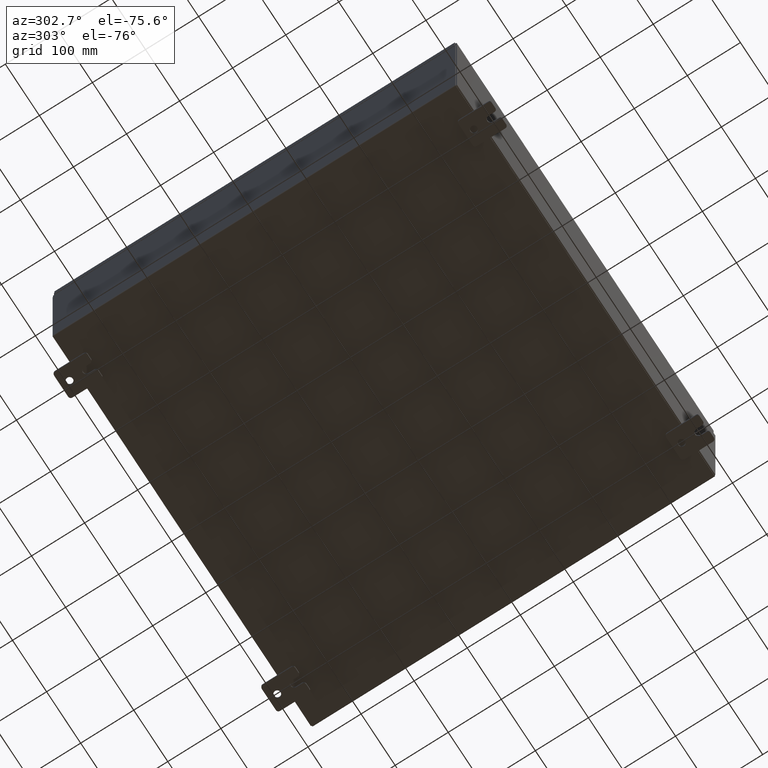
[diagram: clean part render]
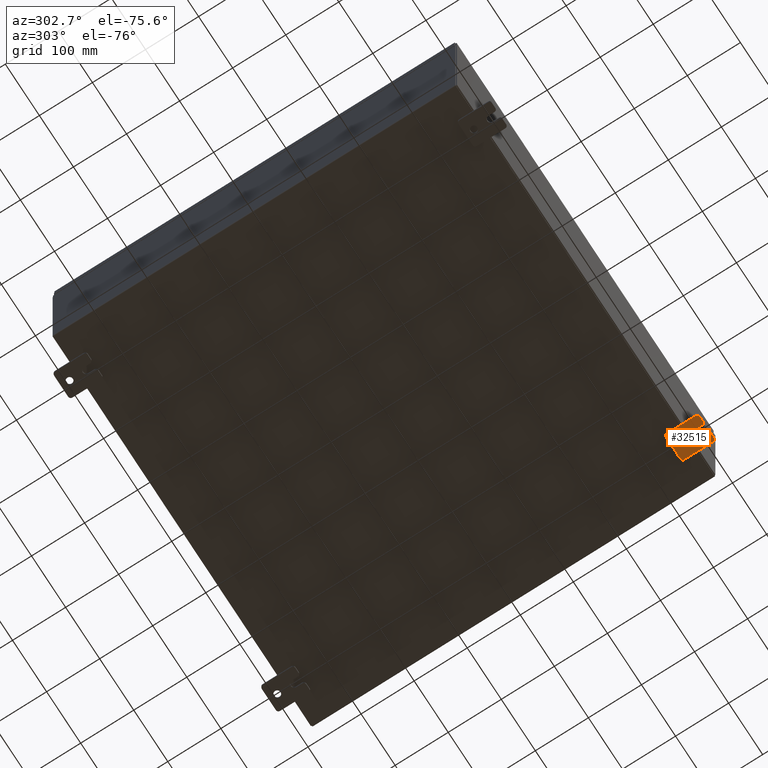
[diagram: same view with one face highlighted and labeled with its STEP entity id]
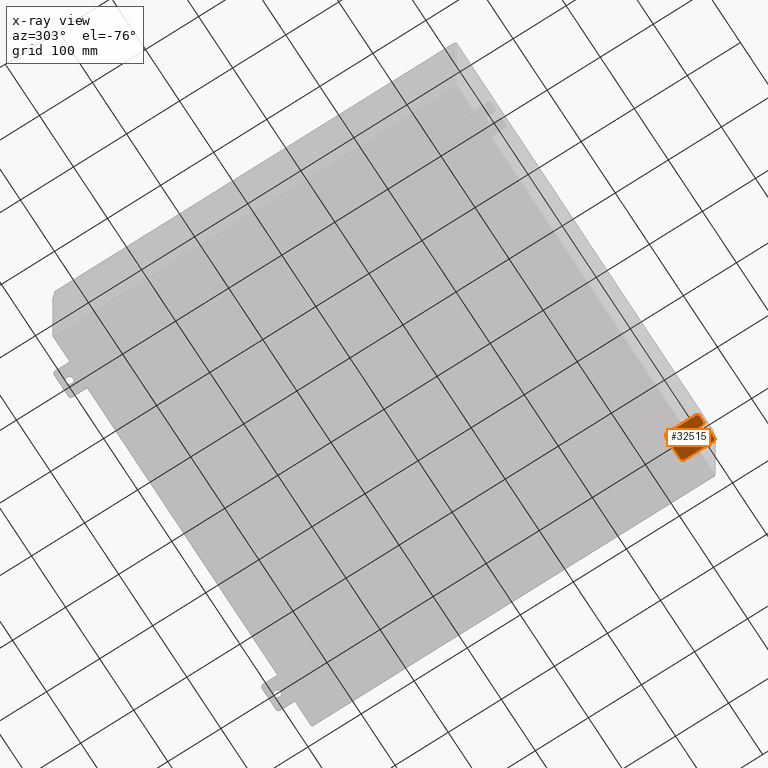
[diagram: x-ray of the same camera — body ghosted, the highlighted face saturated]
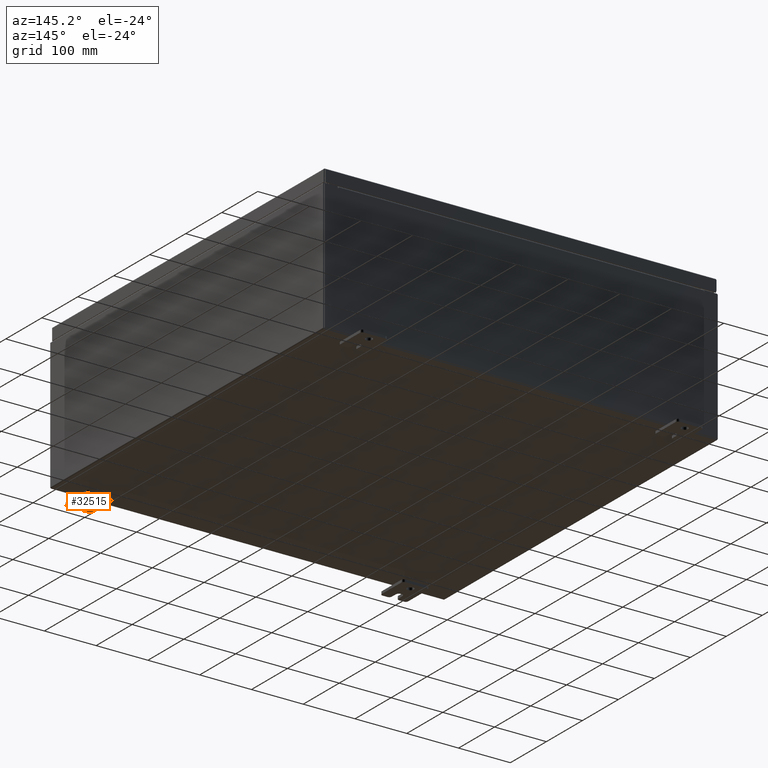
[diagram: same view with one face highlighted and labeled with its STEP entity id]
A machine part, auxiliary view. The second image highlights one B-rep face of the part: STEP entity #32515.
The next image is the same camera in x-ray: the body ghosted, the highlighted face saturated — about 0% of this face is hidden behind the body in this view.
A second angle (auxiliary view) of the same face is appended — the face is thin or edge-on in the first view.
In plain terms, the highlighted planar face has unit normal (0, 0, 1).
Its self-contained STEP definition (entity closure, byte-faithful):
#132 = EDGE_CURVE ( 'NONE', #59509, #32592, #37407, .T. ) ;
#1395 = DIRECTION ( 'NONE',  ( 0.0000000000000000000, 7.189073667537492800E-016, -1.000000000000000000 ) ) ;
#1457 = AXIS2_PLACEMENT_3D ( 'NONE', #35634, #5292, #40741 ) ;
#2058 = DIRECTION ( 'NONE',  ( 0.0000000000000000000, 1.000000000000000000, -1.639108796198558100E-015 ) ) ;
#2150 = DIRECTION ( 'NONE',  ( 1.000000000000000000, -0.0000000000000000000, -5.163192708025532000E-017 ) ) ;
#2399 = VECTOR ( 'NONE', #28332, 39.37007874015748100 ) ;
#2477 = EDGE_CURVE ( 'NONE', #25385, #55563, #50493, .T. ) ;
#2587 = CARTESIAN_POINT ( 'NONE',  ( -0.1880000000000001900, -0.6249999999999992200, -0.2499999999999993900 ) ) ;
#3218 = EDGE_CURVE ( 'NONE', #10831, #9421, #46493, .T. ) ;
#3838 = EDGE_LOOP ( 'NONE', ( #55657, #31829 ) ) ;
#4226 = CARTESIAN_POINT ( 'NONE',  ( -0.1880000000000001900, -0.6249999999999992200, -0.2499999999999998600 ) ) ;
#5292 = DIRECTION ( 'NONE',  ( 1.000000000000000000, -0.0000000000000000000, -5.163192708025532000E-017 ) ) ;
#5555 = DIRECTION ( 'NONE',  ( -1.000000000000000000, -0.0000000000000000000, 0.0000000000000000000 ) ) ;
#6003 = EDGE_CURVE ( 'NONE', #59509, #25766, #60721, .T. ) ;
#6462 = AXIS2_PLACEMENT_3D ( 'NONE', #59493, #24209, #59717 ) ;
#7662 = DIRECTION ( 'NONE',  ( -1.000000000000000000, 6.523827964459549700E-016, 5.163192708025532000E-017 ) ) ;
#8753 = CIRCLE ( 'NONE', #36597, 0.2499999999999999200 ) ;
#9289 = DIRECTION ( 'NONE',  ( -1.000000000000000000, -0.0000000000000000000, 0.0000000000000000000 ) ) ;
#9421 = VERTEX_POINT ( 'NONE', #25465 ) ;
#10155 = DIRECTION ( 'NONE',  ( 0.0000000000000000000, -1.639108796198553600E-015, -1.000000000000000000 ) ) ;
#10831 = VERTEX_POINT ( 'NONE', #41010 ) ;
#11050 = DIRECTION ( 'NONE',  ( -1.000000000000000000, -0.0000000000000000000, 0.0000000000000000000 ) ) ;
#12034 = CARTESIAN_POINT ( 'NONE',  ( -0.1880000000000004700, -1.060000000000003400, -0.2499999999999994400 ) ) ;
#12106 = EDGE_CURVE ( 'NONE', #43524, #32592, #29334, .T. ) ;
#13824 = VECTOR ( 'NONE', #10155, 39.37007874015748100 ) ;
#14012 = ORIENTED_EDGE ( 'NONE', *, *, #31157, .F. ) ;
#14542 = VERTEX_POINT ( 'NONE', #35669 ) ;
#15099 = CARTESIAN_POINT ( 'NONE',  ( -0.1879999999999997800, -1.060000000000003400, -0.4400000000000005000 ) ) ;
#15138 = VECTOR ( 'NONE', #2058, 39.37007874015748100 ) ;
#15873 = CARTESIAN_POINT ( 'NONE',  ( -0.1879999999999997800, 1.249999999999994700, -0.8100000000000092700 ) ) ;
#16304 = EDGE_CURVE ( 'NONE', #10831, #25766, #55681, .T. ) ;
#16535 = ORIENTED_EDGE ( 'NONE', *, *, #28644, .T. ) ;
#17763 = VERTEX_POINT ( 'NONE', #29501 ) ;
#17894 = CARTESIAN_POINT ( 'NONE',  ( -0.1879999999999997800, 1.059999999999993400, -1.000000000000010000 ) ) ;
#17938 = VECTOR ( 'NONE', #31118, 39.37007874015748100 ) ;
#18789 = CARTESIAN_POINT ( 'NONE',  ( -0.1879999999999997800, -1.250000000000004700, -0.4400000000000002200 ) ) ;
#18884 = CARTESIAN_POINT ( 'NONE',  ( -0.1879999999999997800, -1.060000000000001600, 0.8099999999999978300 ) ) ;
#19107 = PLANE ( 'NONE',  #6462 ) ;
#19281 = FACE_BOUND ( 'NONE', #3838, .T. ) ;
#19326 = CARTESIAN_POINT ( 'NONE',  ( -0.1879999999999997800, -1.060000000000001200, 0.9999999999999988900 ) ) ;
#19656 = EDGE_CURVE ( 'NONE', #25385, #40383, #64234, .T. ) ;
#20213 = DIRECTION ( 'NONE',  ( 0.0000000000000000000, 0.0000000000000000000, -1.000000000000000000 ) ) ;
#20223 = ORIENTED_EDGE ( 'NONE', *, *, #2477, .F. ) ;
#20228 = VECTOR ( 'NONE', #45308, 39.37007874015748100 ) ;
#20617 = AXIS2_PLACEMENT_3D ( 'NONE', #35891, #5555, #40988 ) ;
#20627 = VECTOR ( 'NONE', #27859, 39.37007874015748100 ) ;
#21436 = EDGE_LOOP ( 'NONE', ( #44470, #25499, #27611, #16535, #20223, #32148, #22665, #53718, #14012, #46280, #46391, #40251, #28700, #43457 ) ) ;
#22665 = ORIENTED_EDGE ( 'NONE', *, *, #44019, .F. ) ;
#23553 = VECTOR ( 'NONE', #45669, 39.37007874015748100 ) ;
#23838 = CARTESIAN_POINT ( 'NONE',  ( -0.1879999999999997800, 1.059999999999996300, 0.8099999999999938400 ) ) ;
#24209 = DIRECTION ( 'NONE',  ( 1.000000000000000000, 0.0000000000000000000, -0.0000000000000000000 ) ) ;
#25385 = VERTEX_POINT ( 'NONE', #15873 ) ;
#25465 = CARTESIAN_POINT ( 'NONE',  ( -0.1880000000000001900, -0.6249999999999992200, 0.2500000000000005000 ) ) ;
#25499 = ORIENTED_EDGE ( 'NONE', *, *, #132, .T. ) ;
#25663 = CIRCLE ( 'NONE', #1457, 0.2499999999999999200 ) ;
#25766 = VERTEX_POINT ( 'NONE', #34587 ) ;
#26060 = AXIS2_PLACEMENT_3D ( 'NONE', #15099, #50592, #20213 ) ;
#27288 = LINE ( 'NONE', #45627, #13824 ) ;
#27571 = VERTEX_POINT ( 'NONE', #12034 ) ;
#27611 = ORIENTED_EDGE ( 'NONE', *, *, #12106, .F. ) ;
#27859 = DIRECTION ( 'NONE',  ( -6.556435184794182400E-016, -1.000000000000000000, -1.639108796198545600E-016 ) ) ;
#27923 = VERTEX_POINT ( 'NONE', #4226 ) ;
#28332 = DIRECTION ( 'NONE',  ( 0.0000000000000000000, -1.000000000000000000, 1.639108796198558100E-015 ) ) ;
#28641 = CIRCLE ( 'NONE', #26060, 0.1900000000000011100 ) ;
#28644 = EDGE_CURVE ( 'NONE', #43524, #55563, #46500, .T. ) ;
#28700 = ORIENTED_EDGE ( 'NONE', *, *, #3218, .F. ) ;
#28915 = DIRECTION ( 'NONE',  ( 0.0000000000000000000, 0.0000000000000000000, -1.000000000000000000 ) ) ;
#29281 = AXIS2_PLACEMENT_3D ( 'NONE', #23838, #59319, #28915 ) ;
#29334 = LINE ( 'NONE', #58728, #2399 ) ;
#29501 = CARTESIAN_POINT ( 'NONE',  ( -0.1880000000000010000, 0.6249999999999992200, 0.2499999999999999200 ) ) ;
#29917 = DIRECTION ( 'NONE',  ( -1.000000000000000000, -0.0000000000000000000, 0.0000000000000000000 ) ) ;
#30391 = CARTESIAN_POINT ( 'NONE',  ( -0.1880000000000010000, 0.6249999999999992200, -0.2499999999999999200 ) ) ;
#31118 = DIRECTION ( 'NONE',  ( 6.556435184794182400E-016, 1.000000000000000000, 0.0000000000000000000 ) ) ;
#31157 = EDGE_CURVE ( 'NONE', #64914, #38866, #27288, .T. ) ;
#31829 = ORIENTED_EDGE ( 'NONE', *, *, #60847, .T. ) ;
#32000 = CARTESIAN_POINT ( 'NONE',  ( -0.1880000000000005800, -1.250000000000003800, 0.2500000000000005000 ) ) ;
#32148 = ORIENTED_EDGE ( 'NONE', *, *, #19656, .T. ) ;
#32478 = CARTESIAN_POINT ( 'NONE',  ( -0.1880000000000010000, 0.6249999999999992200, -7.703811342100550500E-020 ) ) ;
#32515 = ADVANCED_FACE ( 'NONE', ( #19281, #58161 ), #19107, .F. ) ;
#32592 = VERTEX_POINT ( 'NONE', #19326 ) ;
#34587 = CARTESIAN_POINT ( 'NONE',  ( -0.1879999999999997800, -1.250000000000003100, 0.4400000000000020000 ) ) ;
#35196 = EDGE_CURVE ( 'NONE', #64914, #27571, #28641, .T. ) ;
#35634 = CARTESIAN_POINT ( 'NONE',  ( -0.1880000000000010000, 0.6249999999999992200, -7.703811342100550500E-020 ) ) ;
#35669 = CARTESIAN_POINT ( 'NONE',  ( -0.1879999999999997800, -1.060000000000004500, -1.000000000000006400 ) ) ;
#35891 = CARTESIAN_POINT ( 'NONE',  ( -0.1879999999999997800, -1.060000000000004100, -0.8100000000000050500 ) ) ;
#36597 = AXIS2_PLACEMENT_3D ( 'NONE', #38008, #7662, #43124 ) ;
#37407 = CIRCLE ( 'NONE', #41869, 0.1900000000000011100 ) ;
#37562 = DIRECTION ( 'NONE',  ( 0.0000000000000000000, 0.0000000000000000000, -1.000000000000000000 ) ) ;
#37748 = EDGE_CURVE ( 'NONE', #9421, #27923, #8753, .T. ) ;
#37756 = EDGE_CURVE ( 'NONE', #27923, #27571, #47613, .T. ) ;
#38008 = CARTESIAN_POINT ( 'NONE',  ( -0.1880000000000001900, -0.6249999999999992200, 6.829619984160658000E-017 ) ) ;
#38038 = AXIS2_PLACEMENT_3D ( 'NONE', #32478, #2150, #37562 ) ;
#38866 = VERTEX_POINT ( 'NONE', #57010 ) ;
#39642 = CARTESIAN_POINT ( 'NONE',  ( -0.1879999999999997800, -1.060000000000002100, 0.4400000000000016700 ) ) ;
#40251 = ORIENTED_EDGE ( 'NONE', *, *, #37748, .F. ) ;
#40383 = VERTEX_POINT ( 'NONE', #17894 ) ;
#40741 = DIRECTION ( 'NONE',  ( 0.0000000000000000000, 0.0000000000000000000, -1.000000000000000000 ) ) ;
#40988 = DIRECTION ( 'NONE',  ( 0.0000000000000000000, 0.0000000000000000000, -1.000000000000000000 ) ) ;
#41010 = CARTESIAN_POINT ( 'NONE',  ( -0.1880000000000004700, -1.060000000000002100, 0.2500000000000005000 ) ) ;
#41280 = EDGE_CURVE ( 'NONE', #14542, #38866, #44689, .T. ) ;
#41399 = CARTESIAN_POINT ( 'NONE',  ( -0.1879999999999997800, 1.059999999999993600, -0.8100000000000089400 ) ) ;
#41869 = AXIS2_PLACEMENT_3D ( 'NONE', #18884, #29917, #1395 ) ;
#42664 = CARTESIAN_POINT ( 'NONE',  ( -0.1879999999999997800, -1.250000000000002200, 0.9999999999999992200 ) ) ;
#43124 = DIRECTION ( 'NONE',  ( -6.829619984160660000E-016, -1.000000000000000000, 0.0000000000000000000 ) ) ;
#43457 = ORIENTED_EDGE ( 'NONE', *, *, #16304, .T. ) ;
#43524 = VERTEX_POINT ( 'NONE', #48461 ) ;
#44019 = EDGE_CURVE ( 'NONE', #14542, #40383, #57224, .T. ) ;
#44470 = ORIENTED_EDGE ( 'NONE', *, *, #6003, .F. ) ;
#44689 = CIRCLE ( 'NONE', #20617, 0.1900000000000011100 ) ;
#44745 = DIRECTION ( 'NONE',  ( 0.0000000000000000000, 0.0000000000000000000, -1.000000000000000000 ) ) ;
#45307 = CARTESIAN_POINT ( 'NONE',  ( -0.1879999999999997800, -1.250000000000002400, 0.8099999999999980500 ) ) ;
#45308 = DIRECTION ( 'NONE',  ( 0.0000000000000000000, -1.639108796198553600E-015, -1.000000000000000000 ) ) ;
#45627 = CARTESIAN_POINT ( 'NONE',  ( -0.1879999999999997800, -1.250000000000002200, 0.9999999999999992200 ) ) ;
#45669 = DIRECTION ( 'NONE',  ( 0.0000000000000000000, 1.639108796198553600E-015, 1.000000000000000000 ) ) ;
#46280 = ORIENTED_EDGE ( 'NONE', *, *, #35196, .T. ) ;
#46391 = ORIENTED_EDGE ( 'NONE', *, *, #37756, .F. ) ;
#46493 = LINE ( 'NONE', #32000, #17938 ) ;
#46500 = CIRCLE ( 'NONE', #29281, 0.1900000000000011100 ) ;
#46531 = DIRECTION ( 'NONE',  ( 0.0000000000000000000, 0.0000000000000000000, -1.000000000000000000 ) ) ;
#47613 = LINE ( 'NONE', #2587, #20627 ) ;
#48461 = CARTESIAN_POINT ( 'NONE',  ( -0.1879999999999997800, 1.059999999999996500, 0.9999999999999953400 ) ) ;
#49427 = AXIS2_PLACEMENT_3D ( 'NONE', #41399, #11050, #46531 ) ;
#50493 = LINE ( 'NONE', #56963, #23553 ) ;
#50592 = DIRECTION ( 'NONE',  ( -1.000000000000000000, -0.0000000000000000000, 0.0000000000000000000 ) ) ;
#53718 = ORIENTED_EDGE ( 'NONE', *, *, #41280, .T. ) ;
#54176 = CARTESIAN_POINT ( 'NONE',  ( -0.1879999999999997800, 1.249999999999997300, 0.8099999999999935000 ) ) ;
#55563 = VERTEX_POINT ( 'NONE', #54176 ) ;
#55657 = ORIENTED_EDGE ( 'NONE', *, *, #58329, .T. ) ;
#55681 = CIRCLE ( 'NONE', #62018, 0.1900000000000011400 ) ;
#56963 = CARTESIAN_POINT ( 'NONE',  ( -0.1879999999999997800, 1.249999999999994200, -1.000000000000010400 ) ) ;
#57010 = CARTESIAN_POINT ( 'NONE',  ( -0.1879999999999997800, -1.250000000000005300, -0.8100000000000047200 ) ) ;
#57224 = LINE ( 'NONE', #62801, #15138 ) ;
#58161 = FACE_OUTER_BOUND ( 'NONE', #21436, .T. ) ;
#58329 = EDGE_CURVE ( 'NONE', #65588, #17763, #25663, .T. ) ;
#58728 = CARTESIAN_POINT ( 'NONE',  ( -0.1879999999999997800, 1.249999999999997600, 0.9999999999999951200 ) ) ;
#59319 = DIRECTION ( 'NONE',  ( -1.000000000000000000, -0.0000000000000000000, 0.0000000000000000000 ) ) ;
#59493 = CARTESIAN_POINT ( 'NONE',  ( -0.1879999999999997800, 0.0000000000000000000, 0.0000000000000000000 ) ) ;
#59509 = VERTEX_POINT ( 'NONE', #45307 ) ;
#59717 = DIRECTION ( 'NONE',  ( -0.0000000000000000000, 0.0000000000000000000, -1.000000000000000000 ) ) ;
#60721 = LINE ( 'NONE', #42664, #20228 ) ;
#60847 = EDGE_CURVE ( 'NONE', #17763, #65588, #65182, .T. ) ;
#62018 = AXIS2_PLACEMENT_3D ( 'NONE', #39642, #9289, #44745 ) ;
#62801 = CARTESIAN_POINT ( 'NONE',  ( -0.1879999999999997800, -1.250000000000005600, -1.000000000000006200 ) ) ;
#64234 = CIRCLE ( 'NONE', #49427, 0.1900000000000011100 ) ;
#64914 = VERTEX_POINT ( 'NONE', #18789 ) ;
#65182 = CIRCLE ( 'NONE', #38038, 0.2499999999999999200 ) ;
#65588 = VERTEX_POINT ( 'NONE', #30391 ) ;